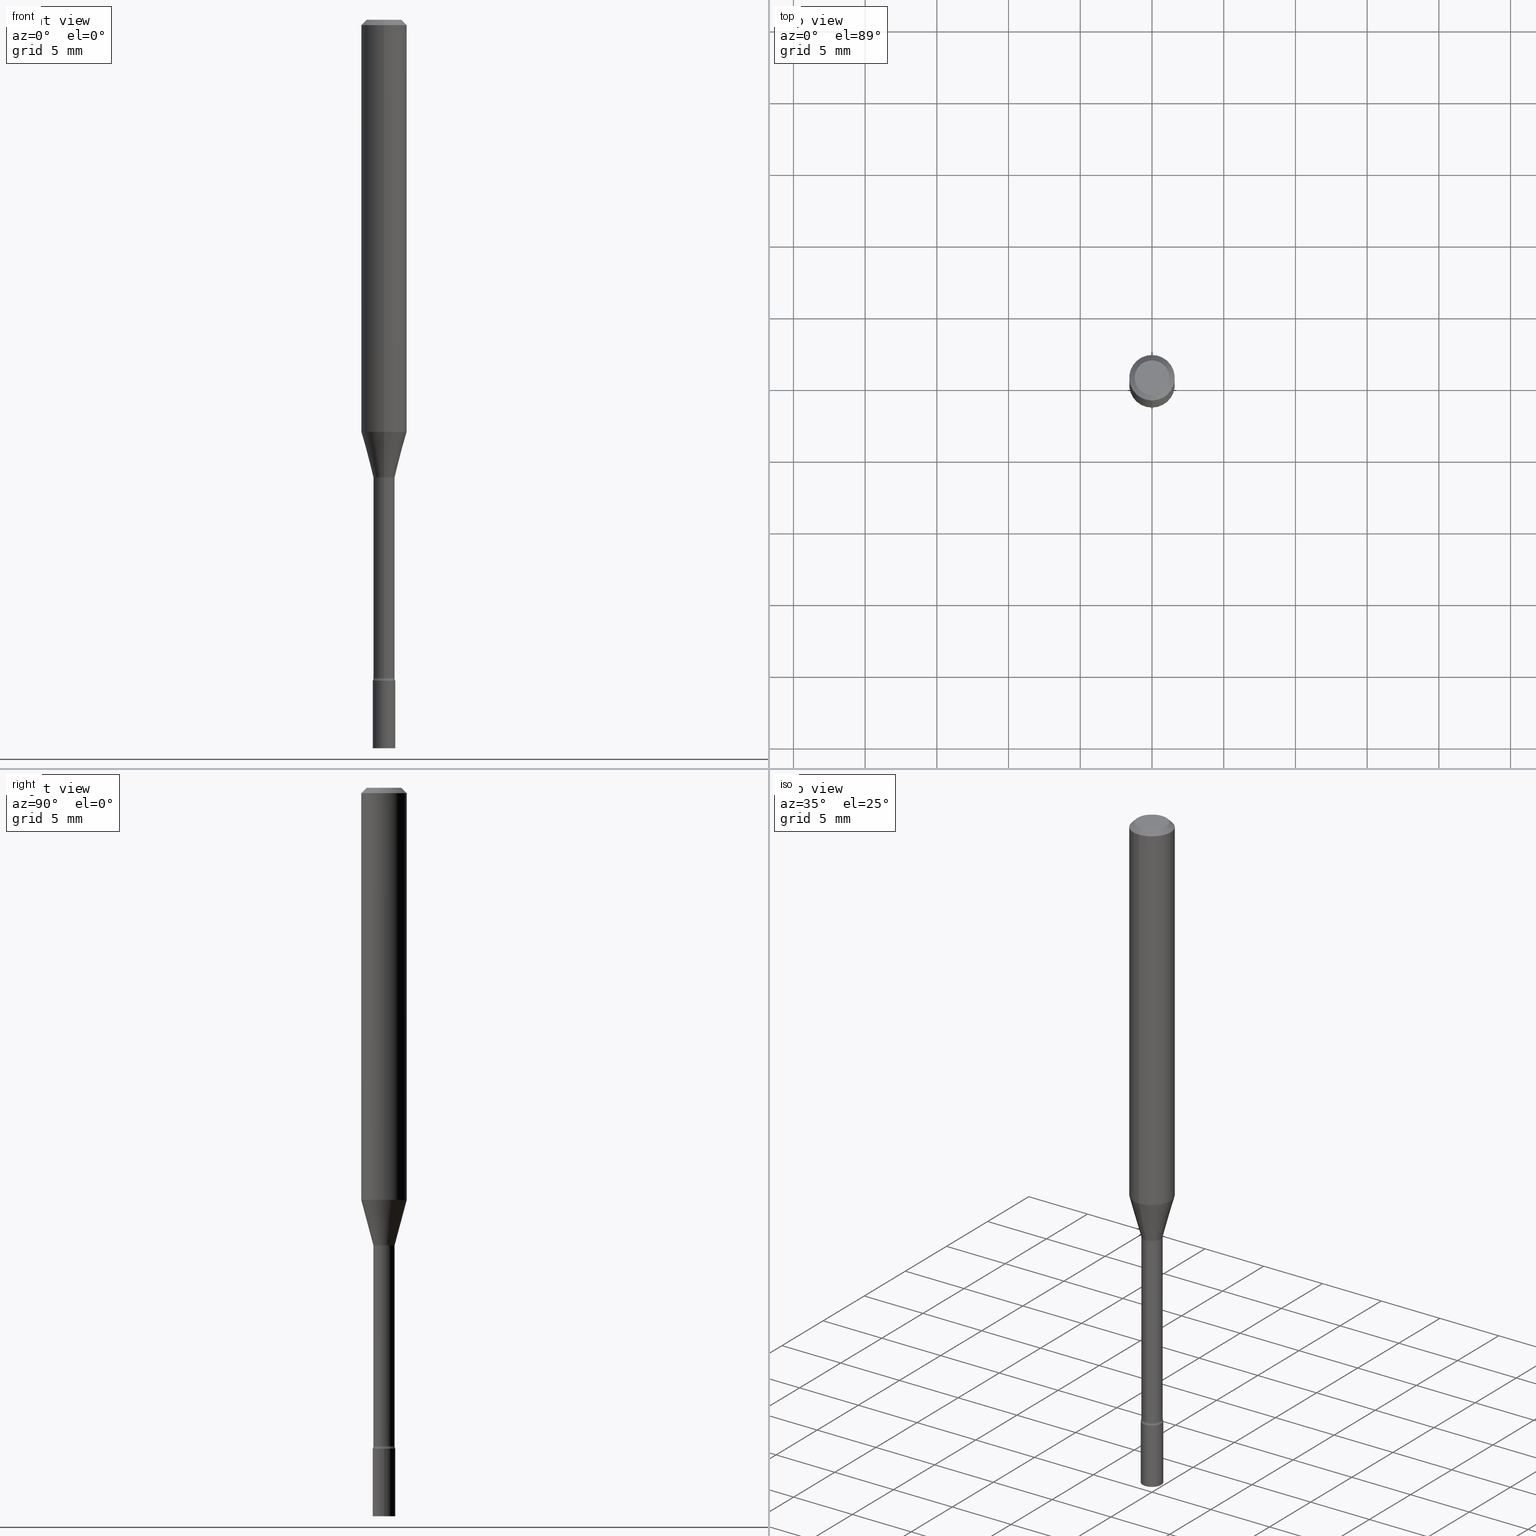
[diagram: canonical four-view strip — front | top / right | iso, engineering-drawing reading convention]
A machine part, canonical four-view strip (front | top / right | iso — engineering-drawing reading convention). The complete STEP part file that produces these views, byte-faithful:
ISO-10303-21;
HEADER;
FILE_DESCRIPTION (( 'STEP AP203' ),
    '1' );
FILE_NAME ('01352.STEP',
    '2024-03-08T21:16:00',
    ( '' ),
    ( '' ),
    'SwSTEP 2.0',
    'SolidWorks 2023',
    '' );
FILE_SCHEMA (( 'CONFIG_CONTROL_DESIGN' ));
ENDSEC;

DATA;
#1 = CONICAL_SURFACE ( 'NONE', #163, 0.06250000000000000000, 0.7853981633974483900 ) ;
#2 = ORIENTED_EDGE ( 'NONE', *, *, #6, .T. ) ;
#3 = CARTESIAN_POINT ( 'NONE',  ( 4.436080414419837365E-29, -6.333547148661465016E-15, -1.813999999999999835 ) ) ;
#4 = DIRECTION ( 'NONE',  ( -2.445484289899004441E-29, 3.491459165283608799E-15, 1.000000000000000000 ) ) ;
#5 = ORIENTED_EDGE ( 'NONE', *, *, #484, .T. ) ;
#6 = EDGE_CURVE ( 'NONE', #466, #492, #23, .T. ) ;
#7 = DIRECTION ( 'NONE',  ( -2.445484289899004441E-29, 3.491459165283608799E-15, 1.000000000000000000 ) ) ;
#8 = AXIS2_PLACEMENT_3D ( 'NONE', #512, #320, #177 ) ;
#9 = AXIS2_PLACEMENT_3D ( 'NONE', #265, #233, #425 ) ;
#10 = DIRECTION ( 'NONE',  ( -2.445484289899004441E-29, 3.491459165283608799E-15, 1.000000000000000000 ) ) ;
#11 = CARTESIAN_POINT ( 'NONE',  ( 3.668226434848513528E-31, -5.237188747925424021E-17, -0.01500000000000003067 ) ) ;
#12 = ORIENTED_EDGE ( 'NONE', *, *, #475, .F. ) ;
#13 = DIRECTION ( 'NONE',  ( -6.982962677686265922E-15, -1.000000000000000000, 0.000000000000000000 ) ) ;
#14 = CARTESIAN_POINT ( 'NONE',  ( 3.076357579831788699E-29, -4.392167601386222842E-15, -1.257974787463810973 ) ) ;
#15 = FACE_OUTER_BOUND ( 'NONE', #483, .T. ) ;
#16 = AXIS2_PLACEMENT_3D ( 'NONE', #480, #397, #78 ) ;
#17 = VECTOR ( 'NONE', #404, 39.37007874015748143 ) ;
#18 = PERSON_AND_ORGANIZATION_ROLE ( 'classification_officer' ) ;
#19 = ORIENTED_EDGE ( 'NONE', *, *, #277, .T. ) ;
#20 = APPLICATION_CONTEXT ( 'configuration controlled 3d designs of mechanical parts and assemblies' ) ;
#21 = DIRECTION ( 'NONE',  ( 1.000000000000000000, 0.000000000000000000, 0.000000000000000000 ) ) ;
#22 = PERSON_AND_ORGANIZATION ( #258, #338 ) ;
#23 = CIRCLE ( 'NONE', #65, 0.06250000000000000000 ) ;
#24 = CYLINDRICAL_SURFACE ( 'NONE', #113, 0.06250000000000000000 ) ;
#25 = CALENDAR_DATE ( 2024, 8, 3 ) ;
#26 = CARTESIAN_POINT ( 'NONE',  ( 2.071232074741135693E-16, 0.02914999999999561345, -1.257974787463810973 ) ) ;
#27 = APPROVAL_STATUS ( 'not_yet_approved' ) ;
#28 = DIMENSIONAL_EXPONENTS ( 1.000000000000000000, 0.000000000000000000, 0.000000000000000000, 0.000000000000000000, 0.000000000000000000, 0.000000000000000000, 0.000000000000000000 ) ;
#29 = EDGE_CURVE ( 'NONE', #193, #161, #213, .T. ) ;
#30 = VERTEX_POINT ( 'NONE', #201 ) ;
#31 = CIRCLE ( 'NONE', #76, 0.02915000000000004046 ) ;
#32 = DIRECTION ( 'NONE',  ( -6.982962677686266711E-15, -1.000000000000000000, 3.491459165283608799E-15 ) ) ;
#33 = CARTESIAN_POINT ( 'NONE',  ( 2.071232074740693438E-16, 0.02915000000000002311, -1.017760346680172786E-16 ) ) ;
#34 = CARTESIAN_POINT ( 'NONE',  ( -2.035533620545239461E-16, -0.02915000000000439809, -1.257974787463810973 ) ) ;
#35 = ORIENTED_EDGE ( 'NONE', *, *, #62, .T. ) ;
#36 = PLANE ( 'NONE',  #408 ) ;
#37 = CIRCLE ( 'NONE', #490, 0.01500000000000001159 ) ;
#38 = CIRCLE ( 'NONE', #9, 0.01500000000000001853 ) ;
#39 = DIRECTION ( 'NONE',  ( -6.982962677686265922E-15, -1.000000000000000000, 4.370956789862821150E-15 ) ) ;
#40 = DIRECTION ( 'NONE',  ( -6.982962677686266711E-15, -1.000000000000000000, 0.000000000000000000 ) ) ;
#41 = CIRCLE ( 'NONE', #130, 0.02966111260566398414 ) ;
#42 = VECTOR ( 'NONE', #332, 39.37007874015748143 ) ;
#43 = VERTEX_POINT ( 'NONE', #359 ) ;
#44 = ORIENTED_EDGE ( 'NONE', *, *, #431, .F. ) ;
#45 = DIRECTION ( 'NONE',  ( -2.445484289899004441E-29, 3.491459165283608799E-15, 1.000000000000000000 ) ) ;
#46 = DIRECTION ( 'NONE',  ( -2.445484289899004441E-29, 3.491459165283608799E-15, 1.000000000000000000 ) ) ;
#47 = VERTEX_POINT ( 'NONE', #249 ) ;
#48 = CYLINDRICAL_SURFACE ( 'NONE', #178, 0.02915000000000002311 ) ;
#49 = EDGE_CURVE ( 'NONE', #161, #193, #281, .T. ) ;
#50 = CARTESIAN_POINT ( 'NONE',  ( 3.066863511200915083E-29, -4.378612759478625128E-15, -1.254092501787273051 ) ) ;
#51 = EDGE_LOOP ( 'NONE', ( #126, #122, #444, #241 ) ) ;
#52 = PERSON_AND_ORGANIZATION_ROLE ( 'design_supplier' ) ;
#53 = CARTESIAN_POINT ( 'NONE',  ( 3.076338101710126374E-29, -4.392195495165068238E-15, -1.257974787463810973 ) ) ;
#54 = DIRECTION ( 'NONE',  ( -2.445484289899004441E-29, 3.491459165283608799E-15, 1.000000000000000000 ) ) ;
#55 = ORIENTED_EDGE ( 'NONE', *, *, #277, .F. ) ;
#56 = CONICAL_SURFACE ( 'NONE', #378, 0.02966111260566398414, 0.2617993877991502960 ) ;
#57 = EDGE_CURVE ( 'NONE', #330, #368, #123, .T. ) ;
#58 = DIRECTION ( 'NONE',  ( -2.445468806185136597E-29, 3.491481338843145583E-15, 1.000000000000000000 ) ) ;
#59 = COORDINATED_UNIVERSAL_TIME_OFFSET ( 5, 0, .BEHIND. ) ;
#60 = DIRECTION ( 'NONE',  ( -4.851104656540964275E-15, -0.7071067811865500152, -0.7071067811865450192 ) ) ;
#61 = TOROIDAL_SURFACE ( 'NONE', #300, 0.04415000000000005725, 0.01500000000000001853 ) ;
#62 = EDGE_CURVE ( 'NONE', #47, #30, #41, .T. ) ;
#63 = CARTESIAN_POINT ( 'NONE',  ( -3.082978022198178580E-16, -0.04415000000000438019, -1.257974787463810751 ) ) ;
#64 = DIRECTION ( 'NONE',  ( 1.000000000000000000, -6.982962677686270655E-15, 0.000000000000000000 ) ) ;
#65 = AXIS2_PLACEMENT_3D ( 'NONE', #139, #371, #211 ) ;
#66 = CC_DESIGN_APPROVAL ( #384, ( #450 ) ) ;
#67 = ORIENTED_EDGE ( 'NONE', *, *, #266, .F. ) ;
#68 = DATE_TIME_ROLE ( 'classification_date' ) ;
#69 = ORIENTED_EDGE ( 'NONE', *, *, #252, .T. ) ;
#70 = CARTESIAN_POINT ( 'NONE',  ( -2.035533620545548349E-16, -0.02915000000000002311, 1.017760346680172786E-16 ) ) ;
#71 = DIRECTION ( 'NONE',  ( -2.445484289899004441E-29, 3.491459165283608405E-15, 1.000000000000000000 ) ) ;
#72 = VERTEX_POINT ( 'NONE', #275 ) ;
#73 = CYLINDRICAL_SURFACE ( 'NONE', #204, 0.03099999999999999978 ) ;
#74 = ORIENTED_EDGE ( 'NONE', *, *, #334, .F. ) ;
#75 = AXIS2_PLACEMENT_3D ( 'NONE', #80, #331, #82 ) ;
#76 = AXIS2_PLACEMENT_3D ( 'NONE', #125, #127, #254 ) ;
#77 = CARTESIAN_POINT ( 'NONE',  ( -0.03099999999999999978, 2.202682480856310560E-16, -1.524869877979020612E-30 ) ) ;
#78 = DIRECTION ( 'NONE',  ( 7.105427357601001859E-15, 1.000000000000000000, 0.000000000000000000 ) ) ;
#79 = EDGE_LOOP ( 'NONE', ( #291, #298, #504, #373 ) ) ;
#80 = CARTESIAN_POINT ( 'NONE',  ( 4.890937612370273194E-29, -6.982962677686291165E-15, -2.000000000000000000 ) ) ;
#81 = ORIENTED_EDGE ( 'NONE', *, *, #448, .T. ) ;
#82 = DIRECTION ( 'NONE',  ( 1.000000000000000000, -6.982962677686270655E-15, 0.000000000000000000 ) ) ;
#83 = CLOSED_SHELL ( 'NONE', ( #356, #395, #430, #412, #226, #382, #435, #270, #192, #293, #269, #449, #169, #128 ) ) ;
#84 = AXIS2_PLACEMENT_3D ( 'NONE', #487, #207, #325 ) ;
#85 = EDGE_CURVE ( 'NONE', #330, #242, #348, .T. ) ;
#86 = CIRCLE ( 'NONE', #276, 0.03099999999999999978 ) ;
#87 = ORIENTED_EDGE ( 'NONE', *, *, #387, .T. ) ;
#88 = DIRECTION ( 'NONE',  ( 1.000000000000000000, -6.982962677686266711E-15, 4.876176775795935232E-29 ) ) ;
#89 = FACE_OUTER_BOUND ( 'NONE', #336, .T. ) ;
#90 = CARTESIAN_POINT ( 'NONE',  ( 4.440892098500904235E-16, 0.06249999999999995143, -0.01500000000000024751 ) ) ;
#91 = CARTESIAN_POINT ( 'NONE',  ( -2.164718430082299331E-16, -0.03100000000000634887, -1.813999999999999835 ) ) ;
#92 = DIRECTION ( 'NONE',  ( -6.982962677686265922E-15, -1.000000000000000000, 3.491459165283608799E-15 ) ) ;
#93 = ORIENTED_EDGE ( 'NONE', *, *, #303, .T. ) ;
#94 = ADVANCED_FACE ( 'NONE', ( #392 ), #140, .T. ) ;
#95 = EDGE_CURVE ( 'NONE', #47, #224, #247, .T. ) ;
#96 = PERSON_AND_ORGANIZATION ( #258, #338 ) ;
#97 = EDGE_LOOP ( 'NONE', ( #461, #403, #110, #493 ) ) ;
#98 = AXIS2_PLACEMENT_3D ( 'NONE', #186, #146, #151 ) ;
#99 = AXIS2_PLACEMENT_3D ( 'NONE', #386, #149, #21 ) ;
#100 = PRODUCT ( '01352', '01352', '', ( #428 ) ) ;
#101 = DATE_AND_TIME ( #469, #323 ) ;
#102 = CARTESIAN_POINT ( 'NONE',  ( -2.035533620545107573E-16, -0.02915000000000635139, -1.806783525791634704 ) ) ;
#103 = PERSON_AND_ORGANIZATION ( #258, #338 ) ;
#104 = VECTOR ( 'NONE', #71, 39.37007874015748143 ) ;
#105 = SECURITY_CLASSIFICATION ( '', '', #220 ) ;
#106 = DATE_AND_TIME ( #398, #509 ) ;
#107 = DIRECTION ( 'NONE',  ( -6.982962677686265922E-15, -1.000000000000000000, 0.000000000000000000 ) ) ;
#108 = CALENDAR_DATE ( 2024, 8, 3 ) ;
#109 = EDGE_CURVE ( 'NONE', #43, #280, #316, .T. ) ;
#110 = ORIENTED_EDGE ( 'NONE', *, *, #189, .T. ) ;
#111 = LINE ( 'NONE', #77, #232 ) ;
#112 = SHAPE_DEFINITION_REPRESENTATION ( #517, #228 ) ;
#113 = AXIS2_PLACEMENT_3D ( 'NONE', #225, #188, #502 ) ;
#114 = CARTESIAN_POINT ( 'NONE',  ( 4.418432751852640684E-29, -6.308350963630715621E-15, -1.806783525791634704 ) ) ;
#115 = EDGE_LOOP ( 'NONE', ( #181, #345 ) ) ;
#116 = APPROVAL_DATE_TIME ( #157, #333 ) ;
#117 = FACE_OUTER_BOUND ( 'NONE', #463, .T. ) ;
#118 = DIRECTION ( 'NONE',  ( -2.445484289899004441E-29, 3.491459165283608799E-15, 1.000000000000000000 ) ) ;
#119 = CARTESIAN_POINT ( 'NONE',  ( 4.436080414419837365E-29, -6.333547148661465016E-15, -1.813999999999999835 ) ) ;
#120 = EDGE_LOOP ( 'NONE', ( #296, #354, #410, #19 ) ) ;
#121 = CARTESIAN_POINT ( 'NONE',  ( 4.440892098500900291E-16, 0.06249999999999602401, -1.131536105567578554 ) ) ;
#122 = ORIENTED_EDGE ( 'NONE', *, *, #334, .T. ) ;
#123 = CIRCLE ( 'NONE', #299, 0.01500000000000001853 ) ;
#124 = AXIS2_PLACEMENT_3D ( 'NONE', #326, #45, #500 ) ;
#125 = CARTESIAN_POINT ( 'NONE',  ( 4.418460727571775110E-29, -6.308310900808636843E-15, -1.806783525791634704 ) ) ;
#126 = ORIENTED_EDGE ( 'NONE', *, *, #475, .T. ) ;
#127 = DIRECTION ( 'NONE',  ( -2.445484289899004441E-29, 3.491459165283608799E-15, 1.000000000000000000 ) ) ;
#128 = ADVANCED_FACE ( 'NONE', ( #89 ), #155, .F. ) ;
#129 = ORIENTED_EDGE ( 'NONE', *, *, #49, .F. ) ;
#130 = AXIS2_PLACEMENT_3D ( 'NONE', #389, #54, #147 ) ;
#131 = VECTOR ( 'NONE', #215, 39.37007874015748143 ) ;
#132 = LOCAL_TIME ( 16, 16, 0.000000000000000000, #59 ) ;
#133 = ORIENTED_EDGE ( 'NONE', *, *, #393, .T. ) ;
#134 = DIRECTION ( 'NONE',  ( -2.445484289899004441E-29, 3.491459165283608799E-15, 1.000000000000000000 ) ) ;
#135 = ORIENTED_EDGE ( 'NONE', *, *, #370, .F. ) ;
#136 = EDGE_CURVE ( 'NONE', #47, #423, #365, .T. ) ;
#137 = APPROVAL ( #27, 'UNSPECIFIED' ) ;
#138 = APPROVAL_ROLE ( '' ) ;
#139 = CARTESIAN_POINT ( 'NONE',  ( 3.668226434848513528E-31, -5.237188747925424021E-17, -0.01500000000000003067 ) ) ;
#140 = PLANE ( 'NONE',  #194 ) ;
#141 = EDGE_LOOP ( 'NONE', ( #55, #482 ) ) ;
#142 = APPROVAL_DATE_TIME ( #506, #384 ) ;
#143 = DIRECTION ( 'NONE',  ( -6.982962677686267499E-15, -1.000000000000000000, 0.000000000000000000 ) ) ;
#144 = CARTESIAN_POINT ( 'NONE',  ( 3.668226434848513528E-31, -5.237188747925424021E-17, -0.01500000000000003067 ) ) ;
#145 = LENGTH_MEASURE_WITH_UNIT ( LENGTH_MEASURE( 0.02539999999999999897 ), #343 );
#146 = DIRECTION ( 'NONE',  ( -2.445484289899004161E-29, 3.491459165283608405E-15, 1.000000000000000000 ) ) ;
#147 = DIRECTION ( 'NONE',  ( -6.982962677686265922E-15, -1.000000000000000000, 0.000000000000000000 ) ) ;
#148 = DIRECTION ( 'NONE',  ( 6.982962677686265922E-15, 1.000000000000000000, -3.483106191921935554E-15 ) ) ;
#149 = DIRECTION ( 'NONE',  ( 0.000000000000000000, 0.000000000000000000, 1.000000000000000000 ) ) ;
#150 = ADVANCED_FACE ( 'NONE', ( #159 ), #494, .T. ) ;
#151 = DIRECTION ( 'NONE',  ( -6.982962677686265922E-15, -1.000000000000000000, 3.491459165283608405E-15 ) ) ;
#152 = FACE_OUTER_BOUND ( 'NONE', #451, .T. ) ;
#153 = COORDINATED_UNIVERSAL_TIME_OFFSET ( 5, 0, .BEHIND. ) ;
#154 = FACE_OUTER_BOUND ( 'NONE', #174, .T. ) ;
#155 = TOROIDAL_SURFACE ( 'NONE', #443, 0.04414999999999999480, 0.01500000000000001506 ) ;
#156 = AXIS2_PLACEMENT_3D ( 'NONE', #53, #118, #447 ) ;
#157 = DATE_AND_TIME ( #108, #474 ) ;
#158 = CARTESIAN_POINT ( 'NONE',  ( 3.066863511200915083E-29, -4.378612759478625128E-15, -1.254092501787273051 ) ) ;
#159 = FACE_OUTER_BOUND ( 'NONE', #184, .T. ) ;
#160 = COORDINATED_UNIVERSAL_TIME_OFFSET ( 5, 0, .BEHIND. ) ;
#161 = VERTEX_POINT ( 'NONE', #216 ) ;
#162 = DIRECTION ( 'NONE',  ( -6.982962677686266711E-15, -1.000000000000000000, 0.000000000000000000 ) ) ;
#163 = AXIS2_PLACEMENT_3D ( 'NONE', #11, #363, #297 ) ;
#164 = DIRECTION ( 'NONE',  ( -2.438088387897960049E-29, 3.491481338843145188E-15, 1.000000000000000000 ) ) ;
#165 = ORIENTED_EDGE ( 'NONE', *, *, #266, .T. ) ;
#166 = DIRECTION ( 'NONE',  ( -6.982962677686265922E-15, -1.000000000000000000, 3.491459165283609194E-15 ) ) ;
#167 = DIRECTION ( 'NONE',  ( -2.445468806185136597E-29, 3.491481338843145583E-15, 1.000000000000000000 ) ) ;
#168 = DIRECTION ( 'NONE',  ( 1.839019923739600710E-15, 0.2588190451025250138, 0.9659258262890670910 ) ) ;
#169 = ADVANCED_FACE ( 'NONE', ( #416 ), #48, .T. ) ;
#170 = MANIFOLD_SOLID_BREP ( 'Body-Move/Copy2[1]', #311 ) ;
#171 = AXIS2_PLACEMENT_3D ( 'NONE', #182, #58, #197 ) ;
#172 = VERTEX_POINT ( 'NONE', #34 ) ;
#173 = CARTESIAN_POINT ( 'NONE',  ( -2.071224423039705600E-16, -0.02966111260566836605, -1.254092501787273051 ) ) ;
#174 = EDGE_LOOP ( 'NONE', ( #165, #313 ) ) ;
#175 = ORIENTED_EDGE ( 'NONE', *, *, #431, .T. ) ;
#176 = DIRECTION ( 'NONE',  ( -2.445484289899004441E-29, 3.491459165283608799E-15, 1.000000000000000000 ) ) ;
#177 = DIRECTION ( 'NONE',  ( -6.982962677686265922E-15, -1.000000000000000000, 3.491459165283608405E-15 ) ) ;
#178 = AXIS2_PLACEMENT_3D ( 'NONE', #259, #434, #32 ) ;
#179 = APPROVAL_PERSON_ORGANIZATION ( #103, #384, #138 ) ;
#180 = COORDINATED_UNIVERSAL_TIME_OFFSET ( 5, 0, .BEHIND. ) ;
#181 = ORIENTED_EDGE ( 'NONE', *, *, #29, .T. ) ;
#182 = CARTESIAN_POINT ( 'NONE',  ( 4.890937612370273194E-29, -6.982962677686291165E-15, -2.000000000000000000 ) ) ;
#183 = PERSON_AND_ORGANIZATION_ROLE ( 'design_owner' ) ;
#184 = EDGE_LOOP ( 'NONE', ( #289, #253, #498, #129 ) ) ;
#185 = COORDINATED_UNIVERSAL_TIME_OFFSET ( 5, 0, .BEHIND. ) ;
#186 = CARTESIAN_POINT ( 'NONE',  ( 2.164718430083186060E-16, 0.03099999999999366457, -1.813999999999999835 ) ) ;
#187 = CIRCLE ( 'NONE', #317, 0.02915000000000000577 ) ;
#188 = DIRECTION ( 'NONE',  ( -2.445484289899004441E-29, 3.491459165283608799E-15, 1.000000000000000000 ) ) ;
#189 = EDGE_CURVE ( 'NONE', #492, #466, #240, .T. ) ;
#190 = APPLICATION_PROTOCOL_DEFINITION ( 'international standard', 'config_control_design', 1994, #366 ) ;
#191 = CALENDAR_DATE ( 2024, 8, 3 ) ;
#192 = ADVANCED_FACE ( 'NONE', ( #468 ), #222, .T. ) ;
#193 = VERTEX_POINT ( 'NONE', #264 ) ;
#194 = AXIS2_PLACEMENT_3D ( 'NONE', #401, #198, #287 ) ;
#195 = CIRCLE ( 'NONE', #467, 0.02966111260566398414 ) ;
#196 = CC_DESIGN_DATE_AND_TIME_ASSIGNMENT ( #101, #268, ( #450 ) ) ;
#197 = DIRECTION ( 'NONE',  ( 1.000000000000000000, -6.982962677686270655E-15, 0.000000000000000000 ) ) ;
#198 = DIRECTION ( 'NONE',  ( 2.438088387897960049E-29, -3.491481338843145188E-15, -1.000000000000000000 ) ) ;
#199 = LINE ( 'NONE', #70, #17 ) ;
#200 = DIRECTION ( 'NONE',  ( -2.445468806185136877E-29, 3.491481338843145188E-15, 1.000000000000000000 ) ) ;
#201 = CARTESIAN_POINT ( 'NONE',  ( -2.071224423039705600E-16, -0.02966111260566836605, -1.254092501787273051 ) ) ;
#202 = DIRECTION ( 'NONE',  ( -2.445484289899004441E-29, 3.491459165283608799E-15, 1.000000000000000000 ) ) ;
#203 = DIRECTION ( 'NONE',  ( -2.445484289899004441E-29, 3.491459165283608799E-15, 1.000000000000000000 ) ) ;
#204 = AXIS2_PLACEMENT_3D ( 'NONE', #286, #167, #246 ) ;
#205 = APPROVAL_PERSON_ORGANIZATION ( #22, #137, #314 ) ;
#206 = EDGE_LOOP ( 'NONE', ( #383, #446, #12, #327 ) ) ;
#207 = DIRECTION ( 'NONE',  ( 2.445484289899004161E-29, -3.491459165283608405E-15, -1.000000000000000000 ) ) ;
#208 = DIRECTION ( 'NONE',  ( -2.445484289899004441E-29, 3.491459165283608799E-15, 1.000000000000000000 ) ) ;
#209 = ORIENTED_EDGE ( 'NONE', *, *, #303, .F. ) ;
#210 = CARTESIAN_POINT ( 'NONE',  ( 0.000000000000000000, 0.000000000000000000, 0.000000000000000000 ) ) ;
#211 = DIRECTION ( 'NONE',  ( -6.982962677686265922E-15, -1.000000000000000000, 3.483106191921935554E-15 ) ) ;
#212 = CC_DESIGN_PERSON_AND_ORGANIZATION_ASSIGNMENT ( #432, #353, ( #319 ) ) ;
#213 = CIRCLE ( 'NONE', #377, 0.03099999999999999978 ) ;
#214 = CONICAL_SURFACE ( 'NONE', #508, 0.02966111260566398414, 0.2617993877991502960 ) ;
#215 = DIRECTION ( 'NONE',  ( -2.445484289899004441E-29, 3.491459165283608405E-15, 1.000000000000000000 ) ) ;
#216 = CARTESIAN_POINT ( 'NONE',  ( -0.03099999999999999978, -6.437986665088246838E-15, -1.813999999999999835 ) ) ;
#217 = ORIENTED_EDGE ( 'NONE', *, *, #370, .T. ) ;
#218 = DIRECTION ( 'NONE',  ( -6.982962677686265922E-15, -1.000000000000000000, 0.000000000000000000 ) ) ;
#219 = DIRECTION ( 'NONE',  ( -2.445484289899004441E-29, 3.491459165283608799E-15, 1.000000000000000000 ) ) ;
#220 = SECURITY_CLASSIFICATION_LEVEL ( 'unclassified' ) ;
#221 = VECTOR ( 'NONE', #168, 39.37007874015748143 ) ;
#222 = CONICAL_SURFACE ( 'NONE', #282, 0.06250000000000000000, 0.7853981633974483900 ) ;
#223 =( GEOMETRIC_REPRESENTATION_CONTEXT ( 3 ) GLOBAL_UNCERTAINTY_ASSIGNED_CONTEXT ( ( #456 ) ) GLOBAL_UNIT_ASSIGNED_CONTEXT ( ( #472, #308, #315 ) ) REPRESENTATION_CONTEXT ( 'NONE', 'WORKASPACE' ) );
#224 = VERTEX_POINT ( 'NONE', #26 ) ;
#225 = CARTESIAN_POINT ( 'NONE',  ( 0.000000000000000000, 0.000000000000000000, 0.000000000000000000 ) ) ;
#226 = ADVANCED_FACE ( 'NONE', ( #394 ), #24, .T. ) ;
#227 = CARTESIAN_POINT ( 'NONE',  ( 4.418460727571775110E-29, -6.308310900808636843E-15, -1.806783525791634704 ) ) ;
#228 = ADVANCED_BREP_SHAPE_REPRESENTATION ( '01352', ( #170, #344, #99 ), #223 ) ;
#229 = CARTESIAN_POINT ( 'NONE',  ( 4.436108501876793905E-29, -6.333506925824464963E-15, -1.813999999999999835 ) ) ;
#230 = DIRECTION ( 'NONE',  ( -6.982962677686265922E-15, -1.000000000000000000, 0.000000000000000000 ) ) ;
#231 = AXIS2_PLACEMENT_3D ( 'NONE', #409, #437, #64 ) ;
#232 = VECTOR ( 'NONE', #251, 39.37007874015748143 ) ;
#233 = DIRECTION ( 'NONE',  ( 1.000000000000000000, -7.105427357601001070E-15, 4.926315236994295088E-29 ) ) ;
#234 = EDGE_CURVE ( 'NONE', #72, #309, #514, .T. ) ;
#235 = EDGE_CURVE ( 'NONE', #280, #43, #438, .T. ) ;
#236 = CC_DESIGN_PERSON_AND_ORGANIZATION_ASSIGNMENT ( #421, #52, ( #319 ) ) ;
#237 = ORIENTED_EDGE ( 'NONE', *, *, #244, .F. ) ;
#238 = CARTESIAN_POINT ( 'NONE',  ( -0.03099999999999999978, -6.437986665088246838E-15, -2.000000000000000000 ) ) ;
#239 = CARTESIAN_POINT ( 'NONE',  ( 4.436108501876793905E-29, -6.333506925824464963E-15, -1.813999999999999835 ) ) ;
#240 = CIRCLE ( 'NONE', #361, 0.06250000000000000000 ) ;
#241 = ORIENTED_EDGE ( 'NONE', *, *, #393, .F. ) ;
#242 = VERTEX_POINT ( 'NONE', #321 ) ;
#243 = CARTESIAN_POINT ( 'NONE',  ( 2.202682480856754541E-16, 0.03099999999999368192, -1.813999999999999835 ) ) ;
#244 = EDGE_CURVE ( 'NONE', #330, #172, #199, .T. ) ;
#245 = ORIENTED_EDGE ( 'NONE', *, *, #244, .T. ) ;
#246 = DIRECTION ( 'NONE',  ( 1.000000000000000000, -6.982962677686266711E-15, 4.876176775795935232E-29 ) ) ;
#247 = CIRCLE ( 'NONE', #16, 0.01500000000000001159 ) ;
#248 = AXIS2_PLACEMENT_3D ( 'NONE', #210, #453, #88 ) ;
#249 = CARTESIAN_POINT ( 'NONE',  ( 3.274220454076450364E-16, 0.02966111260565960916, -1.254092501787273051 ) ) ;
#250 = EDGE_CURVE ( 'NONE', #30, #47, #195, .T. ) ;
#251 = DIRECTION ( 'NONE',  ( -2.445468806185136877E-29, 3.491481338843145188E-15, 1.000000000000000000 ) ) ;
#252 = EDGE_CURVE ( 'NONE', #30, #172, #37, .T. ) ;
#253 = ORIENTED_EDGE ( 'NONE', *, *, #235, .T. ) ;
#254 = DIRECTION ( 'NONE',  ( -6.982962677686266711E-15, -1.000000000000000000, 0.000000000000000000 ) ) ;
#255 = CIRCLE ( 'NONE', #414, 0.03099999999999999978 ) ;
#256 = CARTESIAN_POINT ( 'NONE',  ( 4.418432751852640684E-29, -6.308350963630715621E-15, -1.806783525791634704 ) ) ;
#257 = CARTESIAN_POINT ( 'NONE',  ( -4.364351673553641579E-16, -0.06250000000000396905, -1.131536105567578110 ) ) ;
#258 = PERSON ( 'UNSPECIFIED', 'UNSPECIFIED', 'UNSPECIFIED', ('UNSPECIFIED'), ('UNSPECIFIED'), ('UNSPECIFIED') ) ;
#259 = CARTESIAN_POINT ( 'NONE',  ( 0.000000000000000000, 0.000000000000000000, 0.000000000000000000 ) ) ;
#260 = DIRECTION ( 'NONE',  ( -2.445484289899004441E-29, 3.491459165283608799E-15, 1.000000000000000000 ) ) ;
#261 = DIRECTION ( 'NONE',  ( -2.445484289899004441E-29, 3.491459165283608799E-15, 1.000000000000000000 ) ) ;
#262 = DIRECTION ( 'NONE',  ( -2.445484289899004441E-29, 3.491459165283608799E-15, 1.000000000000000000 ) ) ;
#263 = ORIENTED_EDGE ( 'NONE', *, *, #346, .F. ) ;
#264 = CARTESIAN_POINT ( 'NONE',  ( 0.03099999999999999978, -6.550018991669739348E-15, -1.813999999999999835 ) ) ;
#265 = CARTESIAN_POINT ( 'NONE',  ( 3.137046178381287658E-16, 0.04414999999999374980, -1.806783525791634926 ) ) ;
#266 = EDGE_CURVE ( 'NONE', #309, #72, #454, .T. ) ;
#267 = TOROIDAL_SURFACE ( 'NONE', #497, 0.04415000000000005725, 0.01500000000000001853 ) ;
#268 = DATE_TIME_ROLE ( 'creation_date' ) ;
#269 = ADVANCED_FACE ( 'NONE', ( #507 ), #388, .F. ) ;
#270 = ADVANCED_FACE ( 'NONE', ( #152 ), #306, .T. ) ;
#271 = EDGE_LOOP ( 'NONE', ( #209, #440, #489, #400 ) ) ;
#272 = DIRECTION ( 'NONE',  ( -6.982962677686265922E-15, -1.000000000000000000, 3.483106191921935554E-15 ) ) ;
#273 = APPROVAL_DATE_TIME ( #510, #137 ) ;
#274 = AXIS2_PLACEMENT_3D ( 'NONE', #407, #260, #39 ) ;
#275 = CARTESIAN_POINT ( 'NONE',  ( -3.773273898774340269E-16, -0.04749999999999999362, 1.369293461790243925E-16 ) ) ;
#276 = AXIS2_PLACEMENT_3D ( 'NONE', #229, #465, #230 ) ;
#277 = EDGE_CURVE ( 'NONE', #368, #376, #255, .T. ) ;
#278 = CC_DESIGN_DATE_AND_TIME_ASSIGNMENT ( #106, #68, ( #105 ) ) ;
#279 = DIRECTION ( 'NONE',  ( -1.000000000000000000, 6.982962677686265922E-15, -4.883557194083112901E-29 ) ) ;
#280 = VERTEX_POINT ( 'NONE', #238 ) ;
#281 = CIRCLE ( 'NONE', #231, 0.03099999999999999978 ) ;
#282 = AXIS2_PLACEMENT_3D ( 'NONE', #144, #426, #148 ) ;
#283 = ORIENTED_EDGE ( 'NONE', *, *, #6, .F. ) ;
#284 = CARTESIAN_POINT ( 'NONE',  ( 3.840629472727447874E-16, 0.04749999999999999362, -1.947592745229184119E-16 ) ) ;
#285 = EDGE_CURVE ( 'NONE', #280, #161, #111, .T. ) ;
#286 = CARTESIAN_POINT ( 'NONE',  ( 0.000000000000000000, 0.000000000000000000, 0.000000000000000000 ) ) ;
#287 = DIRECTION ( 'NONE',  ( -1.000000000000000000, 6.982962677686265922E-15, -4.876176775795935793E-29 ) ) ;
#288 = FACE_OUTER_BOUND ( 'NONE', #97, .T. ) ;
#289 = ORIENTED_EDGE ( 'NONE', *, *, #285, .F. ) ;
#290 = CARTESIAN_POINT ( 'NONE',  ( 3.076338101710126374E-29, -4.392195495165068238E-15, -1.257974787463810973 ) ) ;
#291 = ORIENTED_EDGE ( 'NONE', *, *, #109, .T. ) ;
#292 = CIRCLE ( 'NONE', #479, 0.06250000000000000000 ) ;
#293 = ADVANCED_FACE ( 'NONE', ( #154 ), #318, .F. ) ;
#294 = CC_DESIGN_PERSON_AND_ORGANIZATION_ASSIGNMENT ( #310, #396, ( #450 ) ) ;
#295 = ORIENTED_EDGE ( 'NONE', *, *, #109, .F. ) ;
#296 = ORIENTED_EDGE ( 'NONE', *, *, #505, .F. ) ;
#297 = DIRECTION ( 'NONE',  ( 6.982962677686265922E-15, 1.000000000000000000, -3.483106191921935554E-15 ) ) ;
#298 = ORIENTED_EDGE ( 'NONE', *, *, #285, .T. ) ;
#299 = AXIS2_PLACEMENT_3D ( 'NONE', #477, #279, #143 ) ;
#300 = AXIS2_PLACEMENT_3D ( 'NONE', #114, #7, #92 ) ;
#301 = VECTOR ( 'NONE', #339, 39.37007874015748143 ) ;
#302 = FACE_OUTER_BOUND ( 'NONE', #206, .T. ) ;
#303 = EDGE_CURVE ( 'NONE', #242, #330, #31, .T. ) ;
#304 = ORIENTED_EDGE ( 'NONE', *, *, #252, .F. ) ;
#305 = LINE ( 'NONE', #33, #104 ) ;
#306 = CYLINDRICAL_SURFACE ( 'NONE', #8, 0.06250000000000000000 ) ;
#307 = ORIENTED_EDGE ( 'NONE', *, *, #62, .F. ) ;
#308 =( NAMED_UNIT ( * ) PLANE_ANGLE_UNIT ( ) SI_UNIT ( $, .RADIAN. ) );
#309 = VERTEX_POINT ( 'NONE', #284 ) ;
#310 = PERSON_AND_ORGANIZATION ( #258, #338 ) ;
#311 = CLOSED_SHELL ( 'NONE', ( #459, #491, #150, #94 ) ) ;
#312 = VECTOR ( 'NONE', #200, 39.37007874015748143 ) ;
#313 = ORIENTED_EDGE ( 'NONE', *, *, #234, .T. ) ;
#314 = APPROVAL_ROLE ( '' ) ;
#315 =( NAMED_UNIT ( * ) SI_UNIT ( $, .STERADIAN. ) SOLID_ANGLE_UNIT ( ) );
#316 = CIRCLE ( 'NONE', #75, 0.03099999999999999978 ) ;
#317 = AXIS2_PLACEMENT_3D ( 'NONE', #14, #10, #40 ) ;
#318 = PLANE ( 'NONE',  #84 ) ;
#319 = PRODUCT_DEFINITION_FORMATION_WITH_SPECIFIED_SOURCE ( 'ANY', '', #100, .NOT_KNOWN. ) ;
#320 = DIRECTION ( 'NONE',  ( -2.445484289899004441E-29, 3.491459165283608799E-15, 1.000000000000000000 ) ) ;
#321 = CARTESIAN_POINT ( 'NONE',  ( 2.136957277798946103E-16, 0.02914999999999373301, -1.806783525791634704 ) ) ;
#322 = LINE ( 'NONE', #457, #301 ) ;
#323 = LOCAL_TIME ( 16, 16, 0.000000000000000000, #153 ) ;
#324 = DIRECTION ( 'NONE',  ( 1.000000000000000000, -6.982962677686265922E-15, 4.876176775795935793E-29 ) ) ;
#325 = DIRECTION ( 'NONE',  ( 6.982962677686265922E-15, 1.000000000000000000, -3.491459165283608405E-15 ) ) ;
#326 = CARTESIAN_POINT ( 'NONE',  ( 0.000000000000000000, 0.000000000000000000, 0.000000000000000000 ) ) ;
#327 = ORIENTED_EDGE ( 'NONE', *, *, #387, .F. ) ;
#328 = AXIS2_PLACEMENT_3D ( 'NONE', #358, #46, #511 ) ;
#329 = DIRECTION ( 'NONE',  ( -2.445468806185136597E-29, 3.491481338843145583E-15, 1.000000000000000000 ) ) ;
#330 = VERTEX_POINT ( 'NONE', #102 ) ;
#331 = DIRECTION ( 'NONE',  ( -2.445468806185136597E-29, 3.491481338843145583E-15, 1.000000000000000000 ) ) ;
#332 = DIRECTION ( 'NONE',  ( -2.445484289899004441E-29, 3.491459165283608405E-15, 1.000000000000000000 ) ) ;
#333 = APPROVAL ( #519, 'UNSPECIFIED' ) ;
#334 = EDGE_CURVE ( 'NONE', #423, #466, #515, .T. ) ;
#335 = CARTESIAN_POINT ( 'NONE',  ( 3.076357579831788699E-29, -4.392167601386222842E-15, -1.257974787463810973 ) ) ;
#336 = EDGE_LOOP ( 'NONE', ( #460, #436, #69, #217 ) ) ;
#337 = EDGE_LOOP ( 'NONE', ( #295, #419 ) ) ;
#338 = ORGANIZATION ( 'UNSPECIFIED', 'UNSPECIFIED', '' ) ;
#339 = DIRECTION ( 'NONE',  ( 4.937700262164548042E-15, 0.7071067811865451302, -0.7071067811865499042 ) ) ;
#340 = LINE ( 'NONE', #418, #312 ) ;
#341 = VERTEX_POINT ( 'NONE', #257 ) ;
#342 = EDGE_LOOP ( 'NONE', ( #307, #413, #175, #304 ) ) ;
#343 =( LENGTH_UNIT ( ) NAMED_UNIT ( * ) SI_UNIT ( $, .METRE. ) );
#344 = MANIFOLD_SOLID_BREP ( 'Body-Move/Copy2[2]', #83 ) ;
#345 = ORIENTED_EDGE ( 'NONE', *, *, #49, .T. ) ;
#346 = EDGE_CURVE ( 'NONE', #72, #492, #478, .T. ) ;
#347 = APPROVAL_STATUS ( 'not_yet_approved' ) ;
#348 = CIRCLE ( 'NONE', #406, 0.02915000000000004046 ) ;
#349 = TOROIDAL_SURFACE ( 'NONE', #156, 0.04414999999999999480, 0.01500000000000001506 ) ;
#350 = CC_DESIGN_APPROVAL ( #137, ( #319 ) ) ;
#351 = FACE_OUTER_BOUND ( 'NONE', #342, .T. ) ;
#352 = APPLICATION_PROTOCOL_DEFINITION ( 'international standard', 'config_control_design', 1994, #20 ) ;
#353 = PERSON_AND_ORGANIZATION_ROLE ( 'creator' ) ;
#354 = ORIENTED_EDGE ( 'NONE', *, *, #85, .F. ) ;
#355 = DIRECTION ( 'NONE',  ( -2.445484289899004441E-29, 3.491459165283608799E-15, 1.000000000000000000 ) ) ;
#356 = ADVANCED_FACE ( 'NONE', ( #351 ), #349, .F. ) ;
#357 = LINE ( 'NONE', #173, #445 ) ;
#358 = CARTESIAN_POINT ( 'NONE',  ( 7.071109062548899064E-46, -1.009554166719915607E-31, -2.891496417194700971E-17 ) ) ;
#359 = CARTESIAN_POINT ( 'NONE',  ( 0.03099999999999999978, -7.199434520694564708E-15, -2.000000000000000000 ) ) ;
#360 = DIRECTION ( 'NONE',  ( -6.982962677686265922E-15, -1.000000000000000000, 0.000000000000000000 ) ) ;
#361 = AXIS2_PLACEMENT_3D ( 'NONE', #427, #202, #272 ) ;
#362 = CC_DESIGN_SECURITY_CLASSIFICATION ( #105, ( #319 ) ) ;
#363 = DIRECTION ( 'NONE',  ( 2.445484289899004441E-29, -3.491459165283608799E-15, -1.000000000000000000 ) ) ;
#364 = ORIENTED_EDGE ( 'NONE', *, *, #484, .F. ) ;
#365 = LINE ( 'NONE', #411, #221 ) ;
#366 = APPLICATION_CONTEXT ( 'configuration controlled 3d designs of mechanical parts and assemblies' ) ;
#367 = AXIS2_PLACEMENT_3D ( 'NONE', #335, #203, #162 ) ;
#368 = VERTEX_POINT ( 'NONE', #91 ) ;
#369 = CC_DESIGN_APPROVAL ( #333, ( #105 ) ) ;
#370 = EDGE_CURVE ( 'NONE', #172, #224, #187, .T. ) ;
#371 = DIRECTION ( 'NONE',  ( -2.445484289899004441E-29, 3.491459165283608799E-15, 1.000000000000000000 ) ) ;
#372 = DIRECTION ( 'NONE',  ( -1.807323732225330534E-15, -0.2588190451025182415, 0.9659258262890689783 ) ) ;
#373 = ORIENTED_EDGE ( 'NONE', *, *, #375, .F. ) ;
#374 = DIRECTION ( 'NONE',  ( -6.982962677686265922E-15, -1.000000000000000000, 4.370956789862821150E-15 ) ) ;
#375 = EDGE_CURVE ( 'NONE', #43, #193, #340, .T. ) ;
#376 = VERTEX_POINT ( 'NONE', #243 ) ;
#377 = AXIS2_PLACEMENT_3D ( 'NONE', #119, #329, #402 ) ;
#378 = AXIS2_PLACEMENT_3D ( 'NONE', #50, #262, #218 ) ;
#379 = DIRECTION ( 'NONE',  ( -6.982962677686266711E-15, -1.000000000000000000, 3.491459165283608799E-15 ) ) ;
#380 = PERSON_AND_ORGANIZATION ( #258, #338 ) ;
#381 = EDGE_CURVE ( 'NONE', #423, #341, #292, .T. ) ;
#382 = ADVANCED_FACE ( 'NONE', ( #302 ), #56, .T. ) ;
#383 = ORIENTED_EDGE ( 'NONE', *, *, #250, .T. ) ;
#384 = APPROVAL ( #347, 'UNSPECIFIED' ) ;
#385 = DESIGN_CONTEXT ( 'detailed design', #20, 'design' ) ;
#386 = CARTESIAN_POINT ( 'NONE',  ( 0.000000000000000000, 0.000000000000000000, 0.000000000000000000 ) ) ;
#387 = EDGE_CURVE ( 'NONE', #30, #341, #357, .T. ) ;
#388 = PLANE ( 'NONE',  #98 ) ;
#389 = CARTESIAN_POINT ( 'NONE',  ( 3.066863511200915083E-29, -4.378612759478625128E-15, -1.254092501787273051 ) ) ;
#390 = CARTESIAN_POINT ( 'NONE',  ( 4.440892098500625669E-16, 0.06250000000000000000, -2.182161978302255253E-16 ) ) ;
#391 = LOCAL_TIME ( 16, 16, 0.000000000000000000, #185 ) ;
#392 = FACE_OUTER_BOUND ( 'NONE', #337, .T. ) ;
#393 = EDGE_CURVE ( 'NONE', #341, #492, #485, .T. ) ;
#394 = FACE_OUTER_BOUND ( 'NONE', #51, .T. ) ;
#395 = ADVANCED_FACE ( 'NONE', ( #15 ), #481, .T. ) ;
#396 = PERSON_AND_ORGANIZATION_ROLE ( 'creator' ) ;
#397 = DIRECTION ( 'NONE',  ( 1.000000000000000000, -7.105427357601001070E-15, 4.926315236994295088E-29 ) ) ;
#398 = CALENDAR_DATE ( 2024, 8, 3 ) ;
#399 = AXIS2_PLACEMENT_3D ( 'NONE', #499, #219, #379 ) ;
#400 = ORIENTED_EDGE ( 'NONE', *, *, #57, .F. ) ;
#401 = CARTESIAN_POINT ( 'NONE',  ( 2.164718430083231419E-16, 0.03099999999999301578, -2.000000000000000000 ) ) ;
#402 = DIRECTION ( 'NONE',  ( 1.000000000000000000, -6.982962677686270655E-15, 0.000000000000000000 ) ) ;
#403 = ORIENTED_EDGE ( 'NONE', *, *, #346, .T. ) ;
#404 = DIRECTION ( 'NONE',  ( -2.445484289899004441E-29, 3.491459165283608405E-15, 1.000000000000000000 ) ) ;
#405 = CARTESIAN_POINT ( 'NONE',  ( -4.364351673553916201E-16, -0.06250000000000000000, 2.182161978302255253E-16 ) ) ;
#406 = AXIS2_PLACEMENT_3D ( 'NONE', #227, #429, #503 ) ;
#407 = CARTESIAN_POINT ( 'NONE',  ( 2.767153769619014423E-29, -3.950712106633242110E-15, -1.131536105567578332 ) ) ;
#408 = AXIS2_PLACEMENT_3D ( 'NONE', #3, #164, #324 ) ;
#409 = CARTESIAN_POINT ( 'NONE',  ( 4.436080414419837365E-29, -6.333547148661465016E-15, -1.813999999999999835 ) ) ;
#410 = ORIENTED_EDGE ( 'NONE', *, *, #57, .T. ) ;
#411 = CARTESIAN_POINT ( 'NONE',  ( 2.107548809651994522E-16, 0.02966111260565960570, -1.254092501787273051 ) ) ;
#412 = ADVANCED_FACE ( 'NONE', ( #288 ), #1, .T. ) ;
#413 = ORIENTED_EDGE ( 'NONE', *, *, #95, .T. ) ;
#414 = AXIS2_PLACEMENT_3D ( 'NONE', #239, #261, #13 ) ;
#415 = CARTESIAN_POINT ( 'NONE',  ( 3.066863511200915083E-29, -4.378612759478625128E-15, -1.254092501787273051 ) ) ;
#416 = FACE_OUTER_BOUND ( 'NONE', #501, .T. ) ;
#417 = EDGE_LOOP ( 'NONE', ( #263, #67, #81, #2 ) ) ;
#418 = CARTESIAN_POINT ( 'NONE',  ( 0.03099999999999999978, -2.164718430082742572E-16, 1.511614800496739984E-30 ) ) ;
#419 = ORIENTED_EDGE ( 'NONE', *, *, #235, .F. ) ;
#420 = ORIENTED_EDGE ( 'NONE', *, *, #136, .F. ) ;
#421 = PERSON_AND_ORGANIZATION ( #258, #338 ) ;
#422 = ORIENTED_EDGE ( 'NONE', *, *, #381, .T. ) ;
#423 = VERTEX_POINT ( 'NONE', #121 ) ;
#424 = CIRCLE ( 'NONE', #367, 0.02915000000000000577 ) ;
#425 = DIRECTION ( 'NONE',  ( 7.105427357601001859E-15, 1.000000000000000000, 0.000000000000000000 ) ) ;
#426 = DIRECTION ( 'NONE',  ( 2.445484289899004441E-29, -3.491459165283608799E-15, -1.000000000000000000 ) ) ;
#427 = CARTESIAN_POINT ( 'NONE',  ( 3.668226434848513528E-31, -5.237188747925424021E-17, -0.01500000000000003067 ) ) ;
#428 = MECHANICAL_CONTEXT ( 'NONE', #366, 'mechanical' ) ;
#429 = DIRECTION ( 'NONE',  ( -2.445484289899004441E-29, 3.491459165283608799E-15, 1.000000000000000000 ) ) ;
#430 = ADVANCED_FACE ( 'NONE', ( #518 ), #267, .F. ) ;
#431 = EDGE_CURVE ( 'NONE', #224, #172, #424, .T. ) ;
#432 = PERSON_AND_ORGANIZATION ( #258, #338 ) ;
#433 = CIRCLE ( 'NONE', #274, 0.06250000000000000000 ) ;
#434 = DIRECTION ( 'NONE',  ( -2.445484289899004441E-29, 3.491459165283608799E-15, 1.000000000000000000 ) ) ;
#435 = ADVANCED_FACE ( 'NONE', ( #117 ), #214, .T. ) ;
#436 = ORIENTED_EDGE ( 'NONE', *, *, #250, .F. ) ;
#437 = DIRECTION ( 'NONE',  ( -2.445468806185136597E-29, 3.491481338843145583E-15, 1.000000000000000000 ) ) ;
#438 = CIRCLE ( 'NONE', #171, 0.03099999999999999978 ) ;
#439 = DIRECTION ( 'NONE',  ( -6.982962677686266711E-15, -1.000000000000000000, 0.000000000000000000 ) ) ;
#440 = ORIENTED_EDGE ( 'NONE', *, *, #505, .T. ) ;
#441 = FACE_OUTER_BOUND ( 'NONE', #115, .T. ) ;
#442 = FACE_OUTER_BOUND ( 'NONE', #79, .T. ) ;
#443 = AXIS2_PLACEMENT_3D ( 'NONE', #290, #4, #166 ) ;
#444 = ORIENTED_EDGE ( 'NONE', *, *, #189, .F. ) ;
#445 = VECTOR ( 'NONE', #372, 39.37007874015748143 ) ;
#446 = ORIENTED_EDGE ( 'NONE', *, *, #136, .T. ) ;
#447 = DIRECTION ( 'NONE',  ( -6.982962677686265922E-15, -1.000000000000000000, 3.491459165283609194E-15 ) ) ;
#448 = EDGE_CURVE ( 'NONE', #309, #466, #322, .T. ) ;
#449 = ADVANCED_FACE ( 'NONE', ( #495 ), #61, .F. ) ;
#450 = PRODUCT_DEFINITION ( 'UNKNOWN', '', #319, #385 ) ;
#451 = EDGE_LOOP ( 'NONE', ( #74, #422, #133, #283 ) ) ;
#452 = CARTESIAN_POINT ( 'NONE',  ( 2.767153769619014423E-29, -3.950712106633242110E-15, -1.131536105567578332 ) ) ;
#453 = DIRECTION ( 'NONE',  ( -2.445468806185136597E-29, 3.491481338843145583E-15, 1.000000000000000000 ) ) ;
#454 = CIRCLE ( 'NONE', #328, 0.04749999999999999362 ) ;
#455 = ORIENTED_EDGE ( 'NONE', *, *, #381, .F. ) ;
#456 = UNCERTAINTY_MEASURE_WITH_UNIT (LENGTH_MEASURE( 1.000000000000000082E-05 ), #472, 'distance_accuracy_value', 'NONE');
#457 = CARTESIAN_POINT ( 'NONE',  ( 4.364351673553919652E-16, 0.06249999999999995143, -0.01500000000000024751 ) ) ;
#458 = PRODUCT_RELATED_PRODUCT_CATEGORY ( 'detail', '', ( #100 ) ) ;
#459 = ADVANCED_FACE ( 'NONE', ( #442 ), #73, .T. ) ;
#460 = ORIENTED_EDGE ( 'NONE', *, *, #95, .F. ) ;
#461 = ORIENTED_EDGE ( 'NONE', *, *, #234, .F. ) ;
#462 = DIRECTION ( 'NONE',  ( -6.982962677686265922E-15, -1.000000000000000000, 3.491459165283608799E-15 ) ) ;
#463 = EDGE_LOOP ( 'NONE', ( #420, #35, #87, #455 ) ) ;
#464 = CC_DESIGN_PERSON_AND_ORGANIZATION_ASSIGNMENT ( #380, #18, ( #105 ) ) ;
#465 = DIRECTION ( 'NONE',  ( -2.445484289899004441E-29, 3.491459165283608799E-15, 1.000000000000000000 ) ) ;
#466 = VERTEX_POINT ( 'NONE', #90 ) ;
#467 = AXIS2_PLACEMENT_3D ( 'NONE', #158, #355, #107 ) ;
#468 = FACE_OUTER_BOUND ( 'NONE', #417, .T. ) ;
#469 = CALENDAR_DATE ( 2024, 8, 3 ) ;
#470 = DIRECTION ( 'NONE',  ( -1.000000000000000000, 6.982962677686265922E-15, -4.883557194083112901E-29 ) ) ;
#471 = CARTESIAN_POINT ( 'NONE',  ( -4.287811248607203282E-16, -0.06250000000000005551, -0.01499999999999981209 ) ) ;
#472 =( CONVERSION_BASED_UNIT ( 'INCH', #145 ) LENGTH_UNIT ( ) NAMED_UNIT ( #28 ) );
#473 = VECTOR ( 'NONE', #60, 39.37007874015748143 ) ;
#474 = LOCAL_TIME ( 16, 16, 0.000000000000000000, #160 ) ;
#475 = EDGE_CURVE ( 'NONE', #341, #423, #433, .T. ) ;
#476 = CC_DESIGN_PERSON_AND_ORGANIZATION_ASSIGNMENT ( #96, #183, ( #100 ) ) ;
#477 = CARTESIAN_POINT ( 'NONE',  ( -3.082978022198048911E-16, -0.04415000000000637165, -1.806783525791634482 ) ) ;
#478 = LINE ( 'NONE', #471, #473 ) ;
#479 = AXIS2_PLACEMENT_3D ( 'NONE', #452, #208, #374 ) ;
#480 = CARTESIAN_POINT ( 'NONE',  ( 3.137046178381148621E-16, 0.04414999999999560248, -1.257974787463811195 ) ) ;
#481 = CYLINDRICAL_SURFACE ( 'NONE', #124, 0.02915000000000002311 ) ;
#482 = ORIENTED_EDGE ( 'NONE', *, *, #520, .F. ) ;
#483 = EDGE_LOOP ( 'NONE', ( #496, #5, #135, #237 ) ) ;
#484 = EDGE_CURVE ( 'NONE', #242, #224, #305, .T. ) ;
#485 = LINE ( 'NONE', #405, #131 ) ;
#486 = PERSON_AND_ORGANIZATION ( #258, #338 ) ;
#487 = CARTESIAN_POINT ( 'NONE',  ( 3.316907271900976096E-16, 0.04749999999999999362, -1.803017924369449070E-16 ) ) ;
#488 = CARTESIAN_POINT ( 'NONE',  ( -4.364351673553912750E-16, -0.06250000000000005551, -0.01499999999999981209 ) ) ;
#489 = ORIENTED_EDGE ( 'NONE', *, *, #520, .T. ) ;
#490 = AXIS2_PLACEMENT_3D ( 'NONE', #63, #470, #439 ) ;
#491 = ADVANCED_FACE ( 'NONE', ( #441 ), #36, .T. ) ;
#492 = VERTEX_POINT ( 'NONE', #488 ) ;
#493 = ORIENTED_EDGE ( 'NONE', *, *, #448, .F. ) ;
#494 = CYLINDRICAL_SURFACE ( 'NONE', #248, 0.03099999999999999978 ) ;
#495 = FACE_OUTER_BOUND ( 'NONE', #120, .T. ) ;
#496 = ORIENTED_EDGE ( 'NONE', *, *, #85, .T. ) ;
#497 = AXIS2_PLACEMENT_3D ( 'NONE', #256, #134, #462 ) ;
#498 = ORIENTED_EDGE ( 'NONE', *, *, #375, .T. ) ;
#499 = CARTESIAN_POINT ( 'NONE',  ( 7.071109062548899064E-46, -1.009554166719915607E-31, -2.891496417194700971E-17 ) ) ;
#500 = DIRECTION ( 'NONE',  ( -6.982962677686266711E-15, -1.000000000000000000, 3.491459165283608799E-15 ) ) ;
#501 = EDGE_LOOP ( 'NONE', ( #364, #93, #245, #44 ) ) ;
#502 = DIRECTION ( 'NONE',  ( -6.982962677686265922E-15, -1.000000000000000000, 3.491459165283608405E-15 ) ) ;
#503 = DIRECTION ( 'NONE',  ( -6.982962677686266711E-15, -1.000000000000000000, 0.000000000000000000 ) ) ;
#504 = ORIENTED_EDGE ( 'NONE', *, *, #29, .F. ) ;
#505 = EDGE_CURVE ( 'NONE', #242, #376, #38, .T. ) ;
#506 = DATE_AND_TIME ( #25, #132 ) ;
#507 = FACE_OUTER_BOUND ( 'NONE', #141, .T. ) ;
#508 = AXIS2_PLACEMENT_3D ( 'NONE', #415, #176, #360 ) ;
#509 = LOCAL_TIME ( 16, 16, 0.000000000000000000, #180 ) ;
#510 = DATE_AND_TIME ( #191, #391 ) ;
#511 = DIRECTION ( 'NONE',  ( -6.982962677686266711E-15, -1.000000000000000000, 3.491459165283608799E-15 ) ) ;
#512 = CARTESIAN_POINT ( 'NONE',  ( 0.000000000000000000, 0.000000000000000000, 0.000000000000000000 ) ) ;
#513 = APPROVAL_ROLE ( '' ) ;
#514 = CIRCLE ( 'NONE', #399, 0.04749999999999999362 ) ;
#515 = LINE ( 'NONE', #390, #42 ) ;
#516 = APPROVAL_PERSON_ORGANIZATION ( #486, #333, #513 ) ;
#517 = PRODUCT_DEFINITION_SHAPE ( 'NONE', 'NONE',  #450 ) ;
#518 = FACE_OUTER_BOUND ( 'NONE', #271, .T. ) ;
#519 = APPROVAL_STATUS ( 'not_yet_approved' ) ;
#520 = EDGE_CURVE ( 'NONE', #376, #368, #86, .T. ) ;
ENDSEC;
END-ISO-10303-21;
